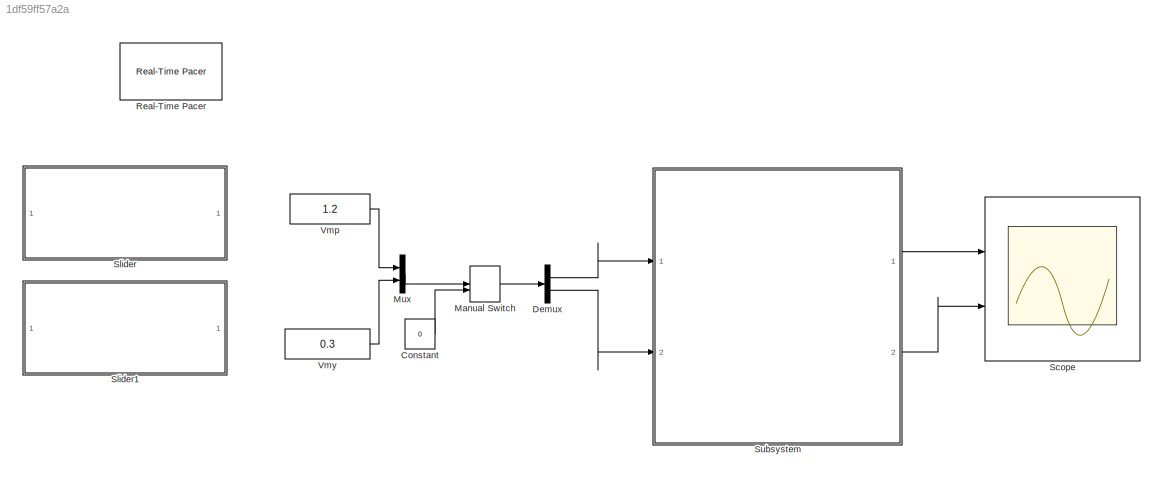
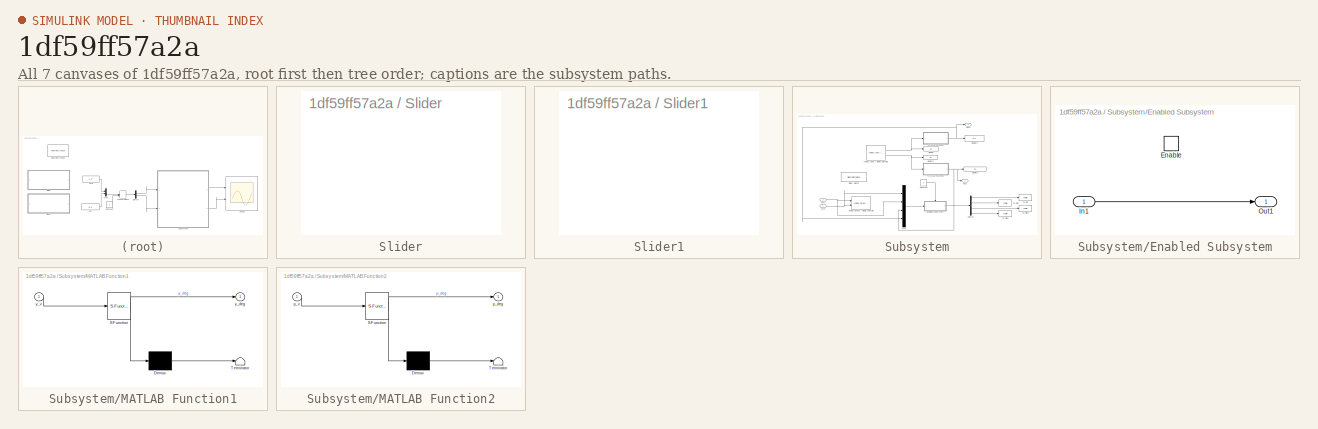
[diagram: thumbnail index - all 7 canvases of the model, root first then tree order]
MODEL slx_1df59ff57a2a
KIND model
CONFIG AbsTol = auto
CONFIG EnableMultiTasking = off
CONFIG FixedStep = auto
CONFIG MaxStep = auto
CONFIG MinStep = auto
CONFIG RelTol = 1e-3
CONFIG SampleTimeConstraint = Unconstrained
CONFIG Solver = VariableStepAuto
CONFIG SolverName = VariableStepAuto
CONFIG StartTime = 0.0
CONFIG StopTime = inf
BLOCK [Constant] Constant
  Value = 0
BLOCK [Demux] Demux
  DisplayOption = bar
  Outputs = 2
  Ports = [1, 2]
BLOCK [ManualSwitch] Manual Switch
  CurrentSetting = 0
BLOCK [Mux] Mux
  DisplayOption = bar
  Inputs = 2
  Ports = [2, 1]
BLOCK [Reference] Real-Time Pacer  REF=realtime_pacer_lib/Real-Time Pacer
  Ports = []
  SourceBlock = realtime_pacer_lib/Real-Time Pacer
  SourceType = RealTime_Pacer
BLOCK [Scope] Scope
  Floating = off
  NumInputPorts = 2
  Ports = [2]
  ScopeSpecificationString = Simulink.scopes.TimeScopeBlockCfg('CurrentConfiguration', extmgr.ConfigurationSet(extmgr.Configuration('Core','General UI',true,'FigureColor',[1 1 1]),extmgr.Configuration('Core','Source UI',true),extmgr.Configuration('Sources','WiredSimulink',true),extmgr.Configuration('Visuals','Time Domain',true,'SerializedDisplays',{struct('MinYLimReal','-45','MaxYLimReal','45','YLabelReal','pitch angle ','Min...<+2165ch>
BLOCK [SubSystem] Slider
  DialogController = hmiCreateDDGDialog
  IsWebBlock = on
  MaskHideContents = on
  Ports = []
  RequestExecContextInheritance = off
BLOCK [SubSystem] Slider1
  DialogController = hmiCreateDDGDialog
  IsWebBlock = on
  MaskHideContents = on
  Ports = []
  RequestExecContextInheritance = off
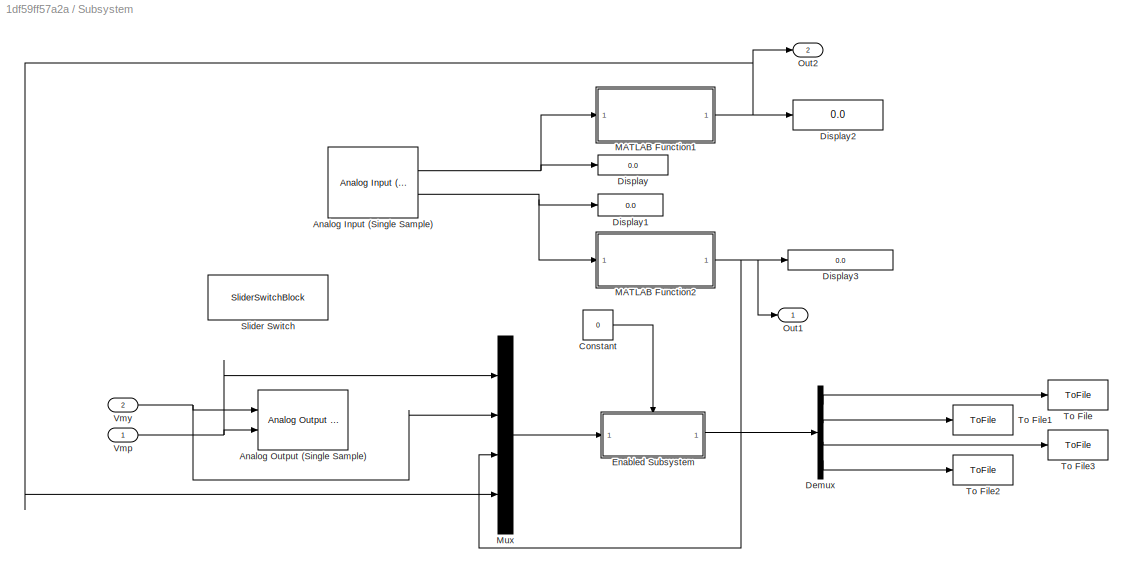
BLOCK [SubSystem] Subsystem
  Ports = [2, 2]
  RequestExecContextInheritance = off
BLOCK [Reference] Subsystem/Analog Input (Single Sample)  REF=daqlib/Analog Input
(Single Sample)
  Ports = [0, 2]
  SourceBlock = daqlib/Analog Input\n(Single Sample)
  SourceProductBaseCode = DA
  SourceProductName = Data Acquisition Toolbox
  SourceType = Analog Input (Single Sample)
BLOCK [Reference] Subsystem/Analog Output (Single Sample)  REF=daqlib/Analog Output
(Single Sample)
  Ports = [2]
  SourceBlock = daqlib/Analog Output\n(Single Sample)
  SourceProductBaseCode = DA
  SourceProductName = Data Acquisition Toolbox
  SourceType = Analog Output (Single Sample)
BLOCK [Constant] Subsystem/Constant
  Value = 0
BLOCK [Demux] Subsystem/Demux
  DisplayOption = bar
  Ports = [1, 4]
BLOCK [Display] Subsystem/Display
  Decimation = 1
  Ports = [1]
BLOCK [Display] Subsystem/Display1
  Decimation = 1
  Ports = [1]
BLOCK [Display] Subsystem/Display2
  Decimation = 1
  Ports = [1]
BLOCK [Display] Subsystem/Display3
  Decimation = 1
  Ports = [1]
BLOCK [SubSystem] Subsystem/Enabled Subsystem
  Ports = [1, 1, 1]
  RequestExecContextInheritance = off
  TreatAsAtomicUnit = on
BLOCK [EnablePort] Subsystem/Enabled Subsystem/Enable
  Ports = []
BLOCK [Inport] Subsystem/Enabled Subsystem/In1
  IconDisplay = Port number
BLOCK [Outport] Subsystem/Enabled Subsystem/Out1
  IconDisplay = Port number
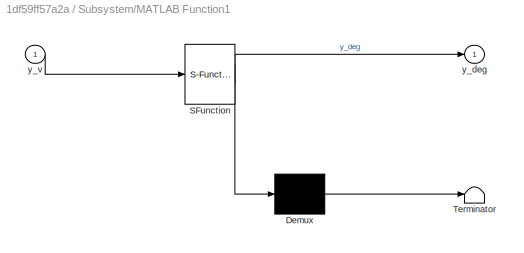
BLOCK [SubSystem] Subsystem/MATLAB Function1
  ErrorFcn = Stateflow.Translate.translate
  PermitHierarchicalResolution = ExplicitOnly
  Ports = [1, 1]
  RequestExecContextInheritance = off
  SFBlockType = MATLAB Function
  TreatAsAtomicUnit = on
BLOCK [Demux] Subsystem/MATLAB Function1/ Demux 
  Outputs = 1
  Ports = [1, 1]
BLOCK [S-Function] Subsystem/MATLAB Function1/ SFunction 
  EnableBusSupport = on
  FunctionName = sf_sfun
  PortCounts = [1 2]
  Ports = [1, 2]
  SFcnIsStateOwnerBlock = off
  SFunctionDeploymentMode = off
  Tag = Stateflow S-Function Helicopter_NL_Data 1
BLOCK [Terminator] Subsystem/MATLAB Function1/ Terminator 
BLOCK [Outport] Subsystem/MATLAB Function1/y_deg
  IconDisplay = Port number
BLOCK [Inport] Subsystem/MATLAB Function1/y_v
  IconDisplay = Port number
BLOCK [SubSystem] Subsystem/MATLAB Function2
  ErrorFcn = Stateflow.Translate.translate
  PermitHierarchicalResolution = ExplicitOnly
  Ports = [1, 1]
  RequestExecContextInheritance = off
  SFBlockType = MATLAB Function
  TreatAsAtomicUnit = on
BLOCK [Demux] Subsystem/MATLAB Function2/ Demux 
  Outputs = 1
  Ports = [1, 1]
BLOCK [S-Function] Subsystem/MATLAB Function2/ SFunction 
  EnableBusSupport = on
  FunctionName = sf_sfun
  PortCounts = [1 2]
  Ports = [1, 2]
  SFcnIsStateOwnerBlock = off
  SFunctionDeploymentMode = off
  Tag = Stateflow S-Function Helicopter_NL_Data 3
BLOCK [Terminator] Subsystem/MATLAB Function2/ Terminator 
BLOCK [Outport] Subsystem/MATLAB Function2/p_deg
  IconDisplay = Port number
BLOCK [Inport] Subsystem/MATLAB Function2/p_v
  IconDisplay = Port number
BLOCK [Mux] Subsystem/Mux
  DisplayOption = bar
  Ports = [4, 1]
BLOCK [Outport] Subsystem/Out1
  IconDisplay = Port number
BLOCK [Outport] Subsystem/Out2
  IconDisplay = Port number
  Port = 2
BLOCK [SliderSwitchBlock] Subsystem/Slider Switch
  WebBlockId = 68
BLOCK [ToFile] Subsystem/To File
  Filename = data_Vmp.mat
  MatrixName = Vmp_meas
  Ports = [1]
  SaveFormat = Timeseries
BLOCK [ToFile] Subsystem/To File1
  Filename = data_Vmy
  MatrixName = Vmy_meas
  Ports = [1]
  SaveFormat = Timeseries
BLOCK [ToFile] Subsystem/To File2
  Filename = data_y_deg
  MatrixName = y_deg_meas
  Ports = [1]
  SaveFormat = Timeseries
BLOCK [ToFile] Subsystem/To File3
  Filename = data_p_deg
  MatrixName = p_deg
  Ports = [1]
  SaveFormat = Timeseries
BLOCK [Inport] Subsystem/Vmp
  IconDisplay = Port number
BLOCK [Inport] Subsystem/Vmy
  IconDisplay = Port number
  Port = 2
BLOCK [Constant] Vmp
  Value = 1.2
BLOCK [Constant] Vmy
  Value = 0.3
LINE Constant:1 -> Manual Switch:2
LINE Demux:1 -> Subsystem:1
LINE Demux:2 -> Subsystem:2
LINE Manual Switch:1 -> Demux:1
LINE Mux:1 -> Manual Switch:1
NET Subsystem/Analog Input (Single Sample):1 -> Subsystem/Display:1, Subsystem/MATLAB Function1:1
NET Subsystem/Analog Input (Single Sample):2 -> Subsystem/Display1:1, Subsystem/MATLAB Function2:1
LINE Subsystem/Constant:1 -> Subsystem/Enabled Subsystem:enable
LINE Subsystem/Demux:1 -> Subsystem/To File:1
LINE Subsystem/Demux:2 -> Subsystem/To File1:1
LINE Subsystem/Demux:3 -> Subsystem/To File3:1
LINE Subsystem/Demux:4 -> Subsystem/To File2:1
LINE Subsystem/Enabled Subsystem/In1:1 -> Subsystem/Enabled Subsystem/Out1:1
LINE Subsystem/Enabled Subsystem:1 -> Subsystem/Demux:1
NET Subsystem/MATLAB Function1:1 -> Subsystem/Display2:1, Subsystem/Mux:4, Subsystem/Out2:1
NET Subsystem/MATLAB Function2:1 -> Subsystem/Display3:1, Subsystem/Mux:3, Subsystem/Out1:1
LINE Subsystem/Mux:1 -> Subsystem/Enabled Subsystem:1
NET Subsystem/Vmp:1 -> Subsystem/Analog Output (Single Sample):2, Subsystem/Mux:1
NET Subsystem/Vmy:1 -> Subsystem/Analog Output (Single Sample):1, Subsystem/Mux:2
LINE Subsystem:1 -> Scope:1
LINE Subsystem:2 -> Scope:2
LINE Vmp:1 -> Mux:1
LINE Vmy:1 -> Mux:2
note: NET lines group one-source signal fan-out (src -> all destinations, sorted); 1:1 wires keep LINE
CHART Subsystem/MATLAB Function1 states=1 transitions=1
  STATE_LABEL 'eML_blk_kernel()'
  STATE_LABEL 'SCRIPT:\nfunction y_deg = y_V_to_deg(y_v)\nerror = 0.145;\ny_v = y_v -error;\nV_max = 5;\nV_min = 0;\ndeg_max = 180;\ndeg_min = 0;\nm =(deg_max - deg_min)/(V_max - V_min)\ny_deg = m*(y_v -V_min) + deg_min;\n'
CHART Subsystem/MATLAB Function2 states=1 transitions=1
  STATE_LABEL 'eML_blk_kernel()'
  STATE_LABEL 'SCRIPT:\nfunction p_deg = p_V_to_deg(p_v)\nerror = 0.12;\np_v = p_v - error;\nV_max = 5;\nV_min = 0;\ndeg_max = 45;\ndeg_min = -45;\nm =(deg_max - deg_min)/(V_max - V_min)\np_deg = m*(p_v -V_min) + deg_min;\n'
